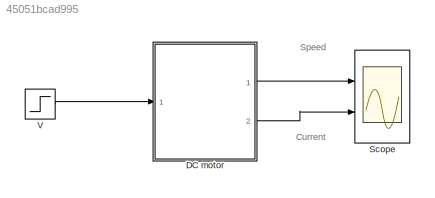
MODEL slx_45051bcad995
KIND model
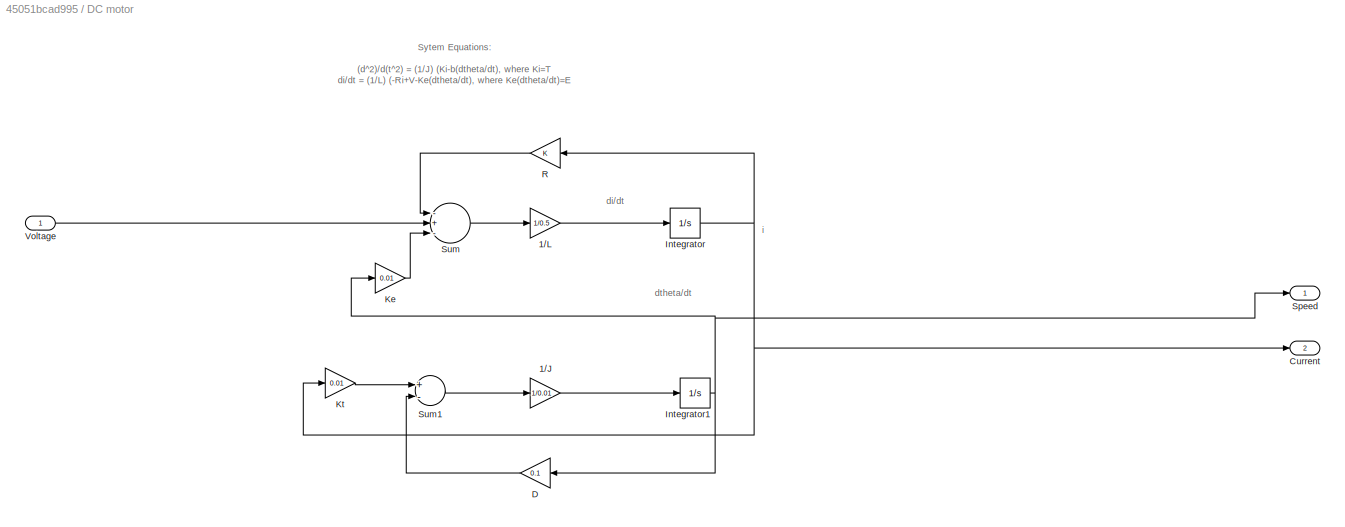
BLOCK [SubSystem] DC motor
  Ports = [1, 2]
  RequestExecContextInheritance = off
BLOCK [Gain] DC motor/1//J
  Gain = 1/0.01
  OutDataTypeStr = Inherit: Inherit via internal rule
  ParamDataTypeStr = Inherit: Inherit via internal rule
  SaturateOnIntegerOverflow = off
BLOCK [Gain] DC motor/1//L
  Gain = 1/0.5
  OutDataTypeStr = Inherit: Inherit via internal rule
  ParamDataTypeStr = Inherit: Inherit via internal rule
  SaturateOnIntegerOverflow = off
BLOCK [Outport] DC motor/Current
  IconDisplay = Port number
  Port = 2
BLOCK [Gain] DC motor/D
  Gain = 0.1
  OutDataTypeStr = Inherit: Inherit via internal rule
  ParamDataTypeStr = Inherit: Inherit via internal rule
  SaturateOnIntegerOverflow = off
BLOCK [Integrator] DC motor/Integrator
  Ports = [1, 1]
BLOCK [Integrator] DC motor/Integrator1
  Ports = [1, 1]
BLOCK [Gain] DC motor/Ke
  Gain = 0.01
  OutDataTypeStr = Inherit: Inherit via internal rule
  ParamDataTypeStr = Inherit: Inherit via internal rule
  SaturateOnIntegerOverflow = off
BLOCK [Gain] DC motor/Kt
  Gain = 0.01
  OutDataTypeStr = Inherit: Inherit via internal rule
  ParamDataTypeStr = Inherit: Inherit via internal rule
  SaturateOnIntegerOverflow = off
BLOCK [Gain] DC motor/R
  OutDataTypeStr = Inherit: Inherit via internal rule
  ParamDataTypeStr = Inherit: Inherit via internal rule
  SaturateOnIntegerOverflow = off
BLOCK [Outport] DC motor/Speed
  IconDisplay = Port number
BLOCK [Sum] DC motor/Sum
  InputSameDT = off
  Inputs = -+-
  OutDataTypeStr = Inherit: Inherit via internal rule
  Ports = [3, 1]
  SaturateOnIntegerOverflow = off
BLOCK [Sum] DC motor/Sum1
  InputSameDT = off
  Inputs = +-
  OutDataTypeStr = Inherit: Inherit via internal rule
  Ports = [2, 1]
  SaturateOnIntegerOverflow = off
BLOCK [Inport] DC motor/Voltage
  IconDisplay = Port number
BLOCK [Scope] Scope
  Floating = off
  NumInputPorts = 2
  Ports = [2]
  ShowLegends = off
  YMax = 0.11~1.1
  YMin = -0.01~-0.1
BLOCK [Step] V
  SampleTime = 0
ANNOTATION (root): Current
ANNOTATION (root): Speed
ANNOTATION DC motor: Sytem Equations: (d^2)/d(t^2) = (1/J) (Ki-b(dtheta/dt), where Ki=T di/dt = (1/L) (-Ri+V-Ke(dtheta/dt), where Ke(dtheta/dt)=E
ANNOTATION DC motor: di/dt
ANNOTATION DC motor: dtheta/dt
ANNOTATION DC motor: i
LINE DC motor/1//J:1 -> DC motor/Integrator1:1
LINE DC motor/1//L:1 -> DC motor/Integrator:1
LINE DC motor/D:1 -> DC motor/Sum1:2
NET DC motor/Integrator1:1 -> DC motor/D:1, DC motor/Ke:1, DC motor/Speed:1
NET DC motor/Integrator:1 -> DC motor/Current:1, DC motor/Kt:1, DC motor/R:1
LINE DC motor/Ke:1 -> DC motor/Sum:3
LINE DC motor/Kt:1 -> DC motor/Sum1:1
LINE DC motor/R:1 -> DC motor/Sum:1
LINE DC motor/Sum1:1 -> DC motor/1//J:1
LINE DC motor/Sum:1 -> DC motor/1//L:1
LINE DC motor/Voltage:1 -> DC motor/Sum:2
LINE DC motor:1 -> Scope:1
LINE DC motor:2 -> Scope:2
LINE V:1 -> DC motor:1
note: NET lines group one-source signal fan-out (src -> all destinations, sorted); 1:1 wires keep LINE
